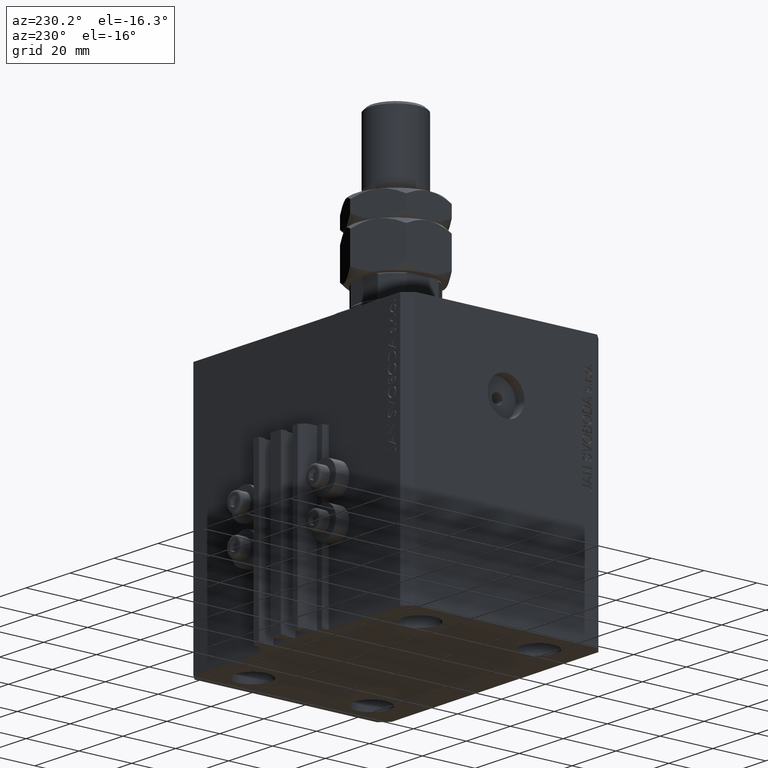
[diagram: clean part render]
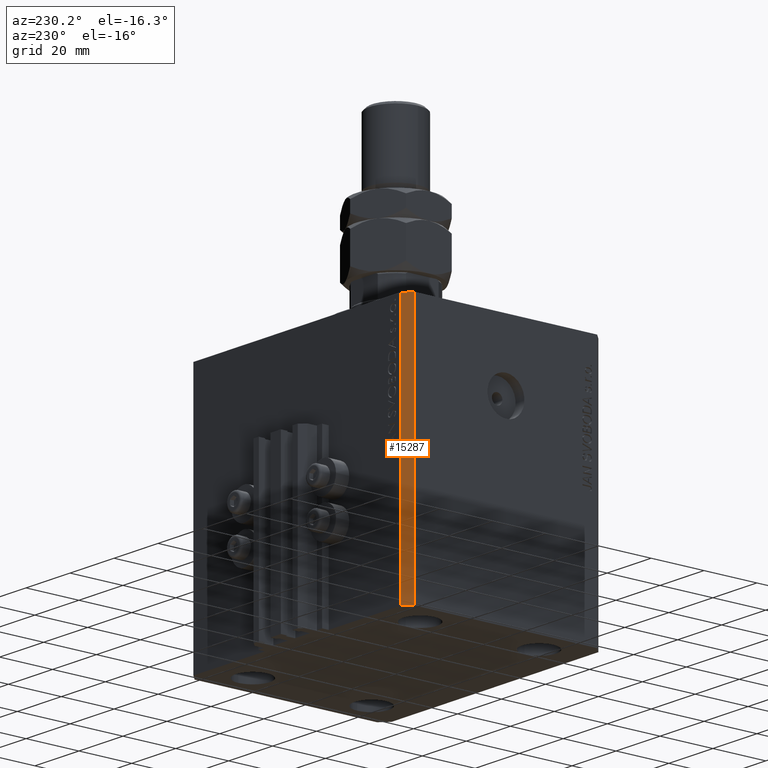
[diagram: same view with one face highlighted and labeled with its STEP entity id]
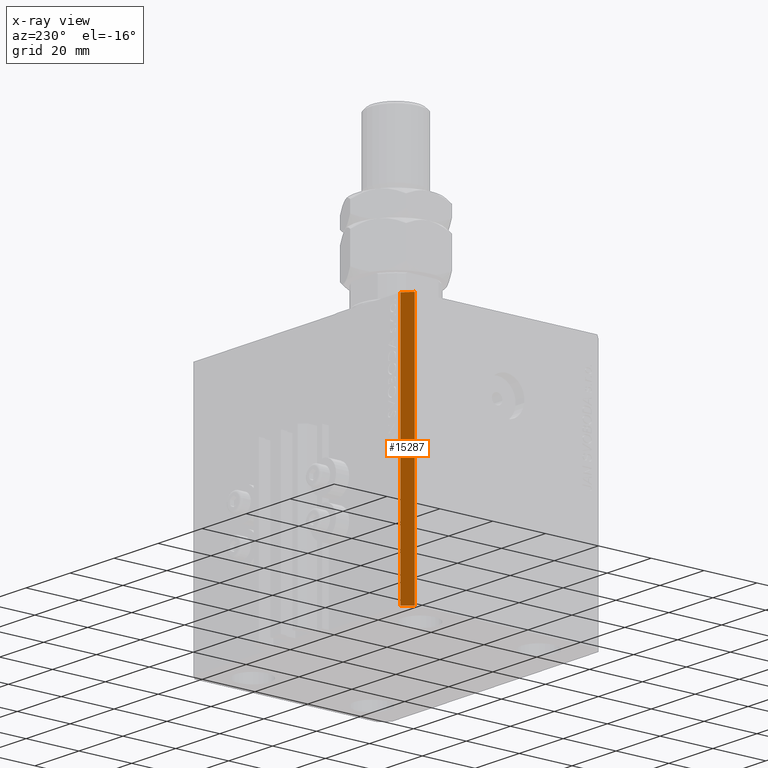
[diagram: x-ray of the same camera — body ghosted, the highlighted face saturated]
A machine part, auxiliary view. The second image highlights one B-rep face of the part: STEP entity #15287.
The next image is the same camera in x-ray: the body ghosted, the highlighted face saturated — about 0% of this face is hidden behind the body in this view.
In plain terms, the highlighted planar face has unit normal (-0.7071, 0.7071, 0).
Its self-contained STEP definition (entity closure, byte-faithful):
#680 = DIRECTION ( 'NONE',  ( -0.7071067811865483499, -0.7071067811865466846, 0.000000000000000000 ) ) ;
#924 = VECTOR ( 'NONE', #25804, 1000.000000000000000 ) ;
#1754 = DIRECTION ( 'NONE',  ( 0.000000000000000000, 0.000000000000000000, 1.000000000000000000 ) ) ;
#2273 = ORIENTED_EDGE ( 'NONE', *, *, #24667, .T. ) ;
#3414 = CARTESIAN_POINT ( 'NONE',  ( -50.00000000000001421, 34.50000000000000000, -95.00000000000000000 ) ) ;
#3438 = EDGE_CURVE ( 'NONE', #23595, #7389, #41413, .T. ) ;
#3876 = CARTESIAN_POINT ( 'NONE',  ( -47.00000000000001421, 37.50000000000000000, 0.000000000000000000 ) ) ;
#4147 = DIRECTION ( 'NONE',  ( 0.000000000000000000, 0.000000000000000000, 1.000000000000000000 ) ) ;
#4677 = DIRECTION ( 'NONE',  ( -0.7071067811865466846, 0.7071067811865484609, 0.000000000000000000 ) ) ;
#5449 = LINE ( 'NONE', #16338, #41780 ) ;
#6778 = LINE ( 'NONE', #36908, #924 ) ;
#7389 = VERTEX_POINT ( 'NONE', #31446 ) ;
#7733 = ORIENTED_EDGE ( 'NONE', *, *, #3438, .F. ) ;
#15230 = ORIENTED_EDGE ( 'NONE', *, *, #17113, .F. ) ;
#15287 = ADVANCED_FACE ( 'NONE', ( #24164 ), #42438, .T. ) ;
#16338 = CARTESIAN_POINT ( 'NONE',  ( -47.00000000000001421, 37.50000000000000000, -95.00000000000000000 ) ) ;
#16522 = CARTESIAN_POINT ( 'NONE',  ( -47.00000000000001421, 37.50000000000000000, -95.00000000000000000 ) ) ;
#17113 = EDGE_CURVE ( 'NONE', #18348, #23595, #5449, .T. ) ;
#17873 = CARTESIAN_POINT ( 'NONE',  ( -50.00000000000001421, 34.50000000000000000, -95.00000000000000000 ) ) ;
#18348 = VERTEX_POINT ( 'NONE', #43396 ) ;
#22954 = VECTOR ( 'NONE', #680, 1000.000000000000000 ) ;
#23595 = VERTEX_POINT ( 'NONE', #40276 ) ;
#24164 = FACE_OUTER_BOUND ( 'NONE', #31960, .T. ) ;
#24667 = EDGE_CURVE ( 'NONE', #18348, #31327, #6778, .T. ) ;
#25804 = DIRECTION ( 'NONE',  ( -0.7071067811865483499, -0.7071067811865466846, 0.000000000000000000 ) ) ;
#27144 = DIRECTION ( 'NONE',  ( -0.7071067811865483499, -0.7071067811865465735, 0.000000000000000000 ) ) ;
#30651 = EDGE_CURVE ( 'NONE', #31327, #7389, #33519, .T. ) ;
#31327 = VERTEX_POINT ( 'NONE', #17873 ) ;
#31446 = CARTESIAN_POINT ( 'NONE',  ( -50.00000000000001421, 34.50000000000000000, 0.000000000000000000 ) ) ;
#31960 = EDGE_LOOP ( 'NONE', ( #7733, #15230, #2273, #44421 ) ) ;
#33519 = LINE ( 'NONE', #3414, #45088 ) ;
#36908 = CARTESIAN_POINT ( 'NONE',  ( -47.00000000000001421, 37.50000000000000000, -95.00000000000000000 ) ) ;
#40276 = CARTESIAN_POINT ( 'NONE',  ( -47.00000000000001421, 37.50000000000000000, 0.000000000000000000 ) ) ;
#41413 = LINE ( 'NONE', #3876, #22954 ) ;
#41780 = VECTOR ( 'NONE', #1754, 1000.000000000000000 ) ;
#42438 = PLANE ( 'NONE',  #47225 ) ;
#43396 = CARTESIAN_POINT ( 'NONE',  ( -47.00000000000001421, 37.50000000000000000, -95.00000000000000000 ) ) ;
#44421 = ORIENTED_EDGE ( 'NONE', *, *, #30651, .T. ) ;
#45088 = VECTOR ( 'NONE', #4147, 1000.000000000000000 ) ;
#47225 = AXIS2_PLACEMENT_3D ( 'NONE', #16522, #4677, #27144 ) ;